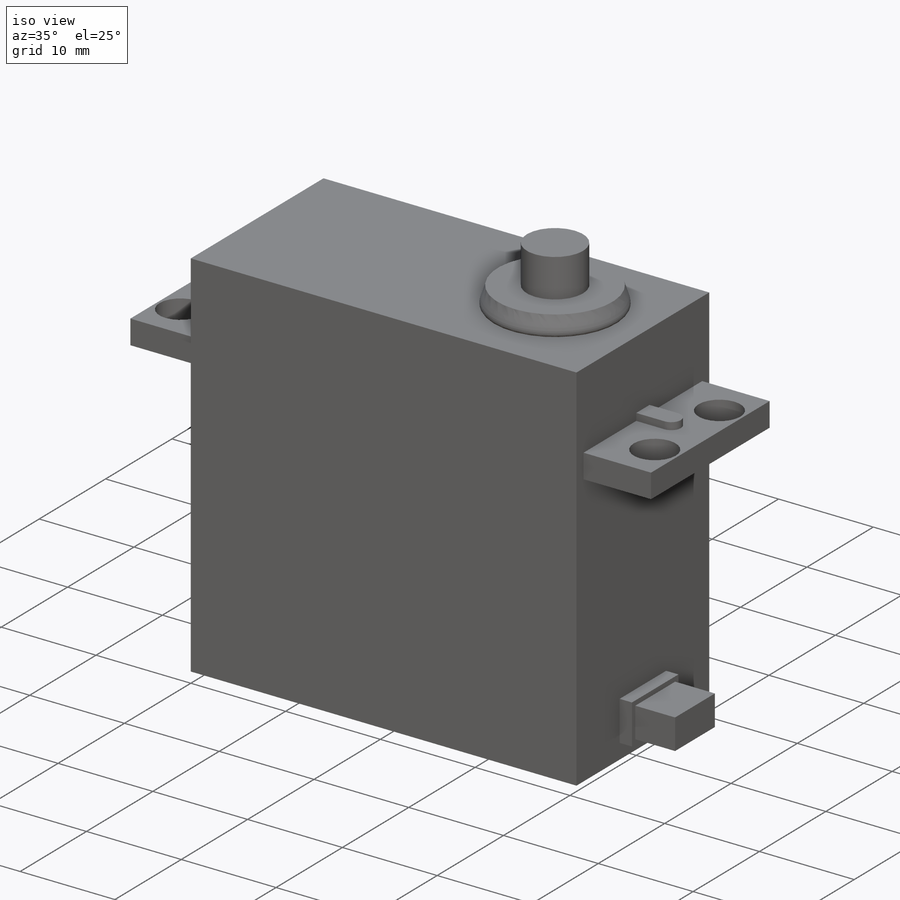
[diagram: iso view]
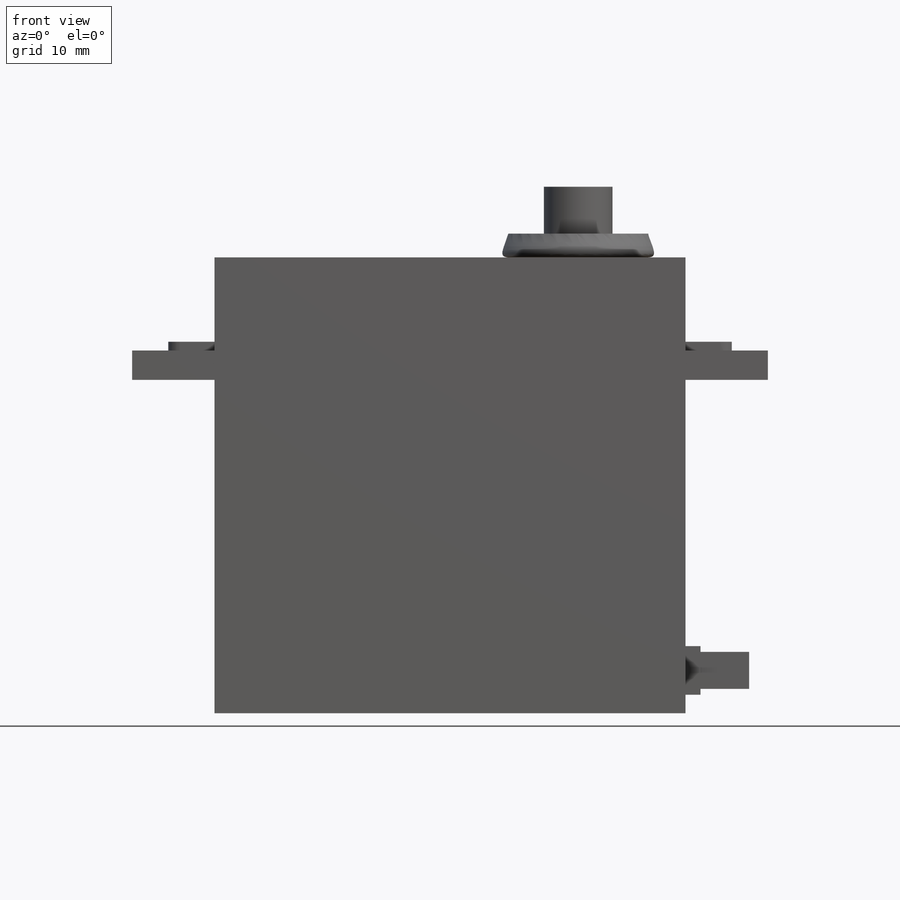
[diagram: front view]
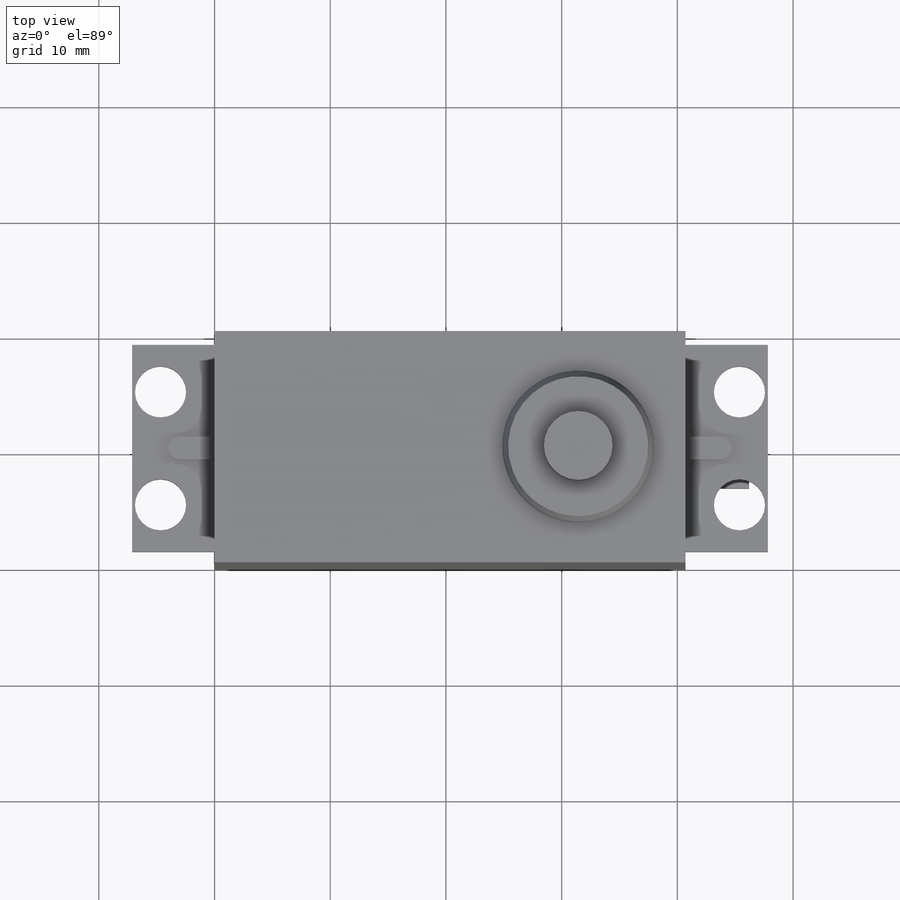
[diagram: top view]
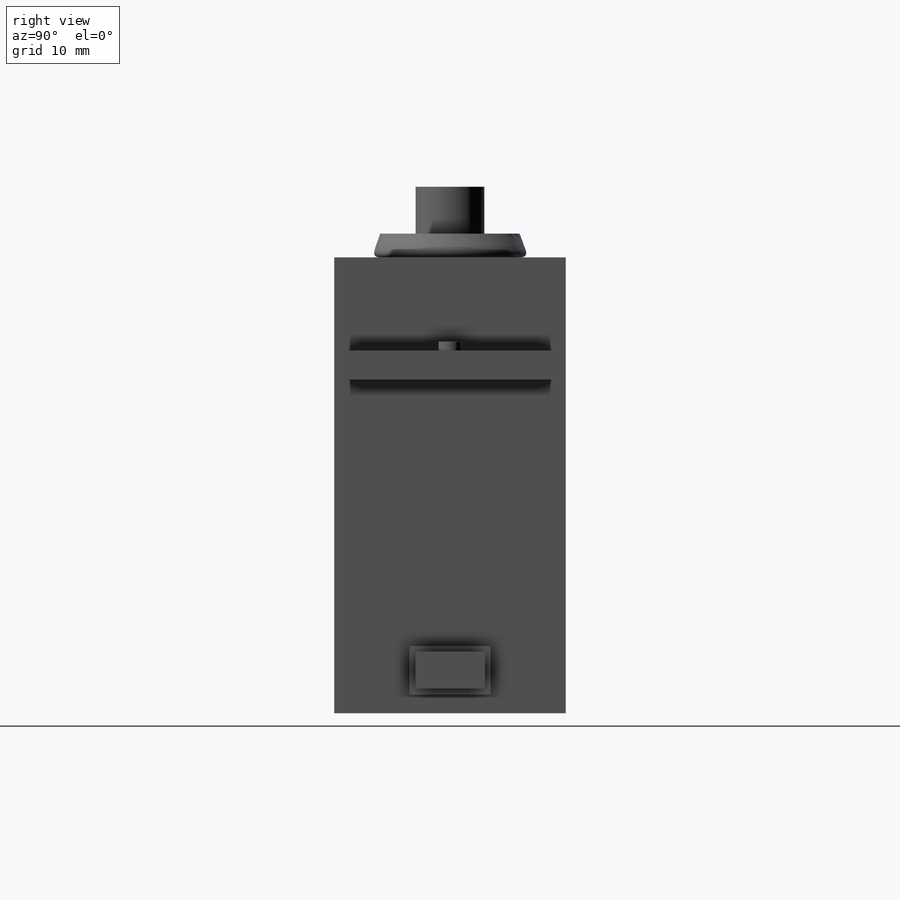
[diagram: right view]
SOLIDWORKS PART (.sldprt)
format: sldprt  version: not decoded by parser v0  size: 315,904 bytes
history: native  units: mm
features: sketch x13, extrude x9, cut_extrude x4, plane x3, material x1 + 2 further entries (+8 scaffold rows collapsed)
feature tree (40):
  scaffold x8  (default folders/planes/origin — collapsed)
  material  "材料 <指定なし>"
  "ｻｰﾌｪｽ ﾎﾞﾃﾞｨ"
  "ｿﾘｯﾄﾞ ﾎﾞﾃﾞｨ"
  plane  "正面"
  plane  "平面"
  plane  "右側面"
  sketch  "ｽｹｯﾁ1"
  extrude  "ﾎﾞｽ - 押し出し1"  Depth=39.4mm
  sketch  "ｽｹｯﾁ8"
  extrude  "ﾎﾞｽ - 押し出し4"  Depth=7.12mm
  sketch  "ｽｹｯﾁ9"
  extrude  "ﾎﾞｽ - 押し出し5"  Depth=7.12mm
  sketch  "ｽｹｯﾁ11"  dims[D1=7.07mm]
  extrude  "ﾎﾞｽ - 押し出し8"  Depth=2.05mm
  sketch  "ｽｹｯﾁ12"  dims[D1=~2.233554mm]
  extrude  "ﾎﾞｽ - 押し出し9"  Depth=4.05mm
  sketch  "ｽｹｯﾁ13"  dims[D1=~2.155029mm]
  cut_extrude  "ｶｯﾄ - 押し出し1"  Depth=2.54mm
  sketch  "ｽｹｯﾁ14"  dims[D1=~2.092137mm]
  cut_extrude  "ｶｯﾄ - 押し出し2"  Depth=2.54mm
  sketch  "ｽｹｯﾁ15"  dims[D1=~2.350763mm]
  cut_extrude  "ｶｯﾄ - 押し出し3"  Depth=2.54mm
  sketch  "ｽｹｯﾁ16"  dims[D1=~2.152902mm]
  cut_extrude  "ｶｯﾄ - 押し出し4"  Depth=2.54mm
  sketch  "ｽｹｯﾁ19"  dims[D1=0.0mm]
  extrude  "ﾎﾞｽ - 押し出し11"  Depth=0.76mm
  sketch  "ｽｹｯﾁ21"  dims[D1=0.0mm]
  extrude  "ﾎﾞｽ - 押し出し12"  Depth=0.76mm
  sketch  "ｽｹｯﾁ22"
  extrude  "ﾎﾞｽ - 押し出し13"  Depth=1.3mm
  sketch  "ｽｹｯﾁ24"  dims[D1=0.5mm D2=0.5mm D3=0.5mm D4=0.5mm]
  extrude  "ﾎﾞｽ - 押し出し14"  Depth=4.2mm
decode coverage: 22 of 26 modeling features carry decoded parameters; 2 rows unclassified (native names shown)
note: ~ marks probable driven/reference dimensions
note: suppression state not decoded; provenance and decode notes live in map.json
